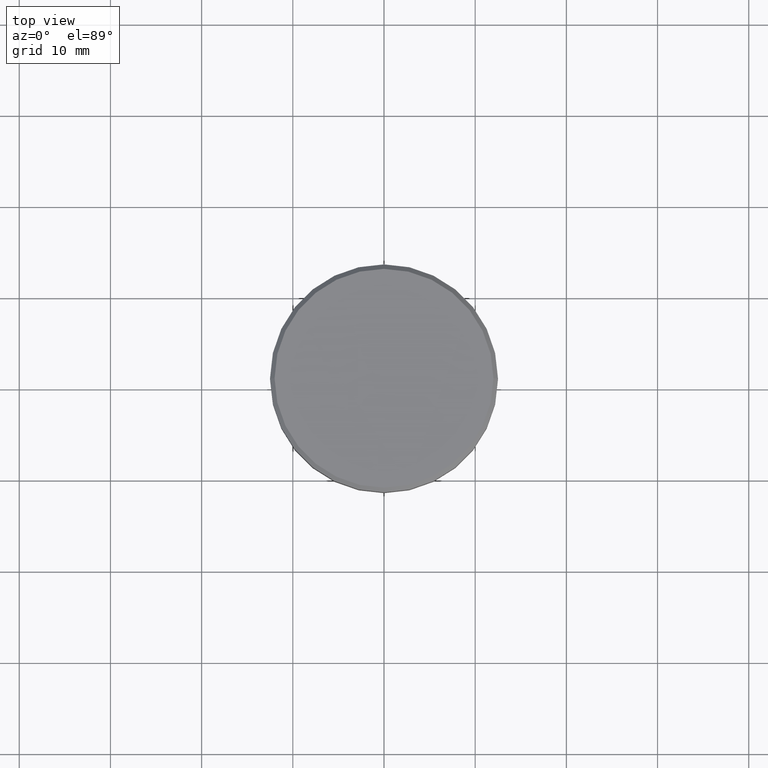
[diagram: clean part render]
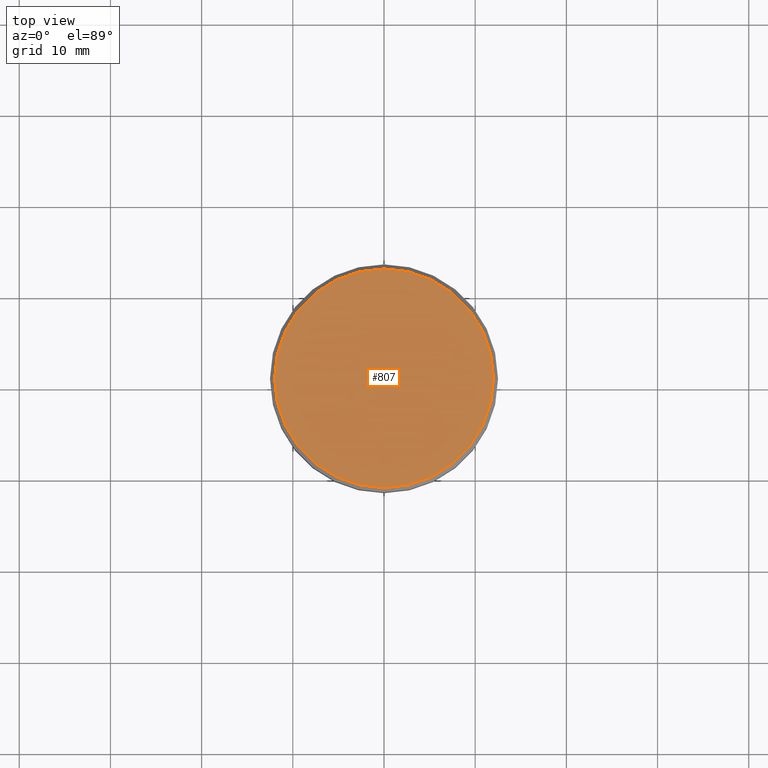
[diagram: same view with one face highlighted and labeled with its STEP entity id]
A machine part, top view. The second image highlights one B-rep face of the part: STEP entity #807.
In plain terms, the highlighted planar face has unit normal (0, -0, 1).
Its self-contained STEP definition (entity closure, byte-faithful):
#11 = AXIS2_PLACEMENT_3D ( 'NONE', #544, #1001, #168 ) ;
#127 = FACE_OUTER_BOUND ( 'NONE', #883, .T. ) ;
#168 = DIRECTION ( 'NONE',  ( 1.000000000000000000, 0.000000000000000000, 0.000000000000000000 ) ) ;
#184 = CARTESIAN_POINT ( 'NONE',  ( 0.000000000000000000, 0.000000000000000000, 0.000000000000000000 ) ) ;
#236 = DIRECTION ( 'NONE',  ( 1.000000000000000000, 0.000000000000000000, 0.000000000000000000 ) ) ;
#309 = VERTEX_POINT ( 'NONE', #1178 ) ;
#366 = CIRCLE ( 'NONE', #11, 12.00000000000000355 ) ;
#391 = VERTEX_POINT ( 'NONE', #547 ) ;
#453 = DIRECTION ( 'NONE',  ( -0.000000000000000000, -0.000000000000000000, 1.000000000000000000 ) ) ;
#471 = DIRECTION ( 'NONE',  ( 0.000000000000000000, -0.000000000000000000, 1.000000000000000000 ) ) ;
#495 = CIRCLE ( 'NONE', #531, 12.00000000000000355 ) ;
#531 = AXIS2_PLACEMENT_3D ( 'NONE', #184, #453, #1023 ) ;
#544 = CARTESIAN_POINT ( 'NONE',  ( 0.000000000000000000, 0.000000000000000000, 0.000000000000000000 ) ) ;
#547 = CARTESIAN_POINT ( 'NONE',  ( -12.00000000000000355, 0.000000000000000000, 0.000000000000000000 ) ) ;
#641 = CARTESIAN_POINT ( 'NONE',  ( 0.000000000000000000, 0.000000000000000000, 0.000000000000000000 ) ) ;
#674 = EDGE_CURVE ( 'NONE', #309, #391, #366, .T. ) ;
#701 = EDGE_CURVE ( 'NONE', #391, #309, #495, .T. ) ;
#807 = ADVANCED_FACE ( 'NONE', ( #127 ), #1145, .T. ) ;
#820 = ORIENTED_EDGE ( 'NONE', *, *, #674, .T. ) ;
#883 = EDGE_LOOP ( 'NONE', ( #1050, #820 ) ) ;
#1001 = DIRECTION ( 'NONE',  ( -0.000000000000000000, -0.000000000000000000, 1.000000000000000000 ) ) ;
#1023 = DIRECTION ( 'NONE',  ( 1.000000000000000000, 0.000000000000000000, 0.000000000000000000 ) ) ;
#1050 = ORIENTED_EDGE ( 'NONE', *, *, #701, .T. ) ;
#1142 = AXIS2_PLACEMENT_3D ( 'NONE', #641, #471, #236 ) ;
#1145 = PLANE ( 'NONE',  #1142 ) ;
#1178 = CARTESIAN_POINT ( 'NONE',  ( 12.00000000000000355, 1.500192328955507734E-15, 0.000000000000000000 ) ) ;